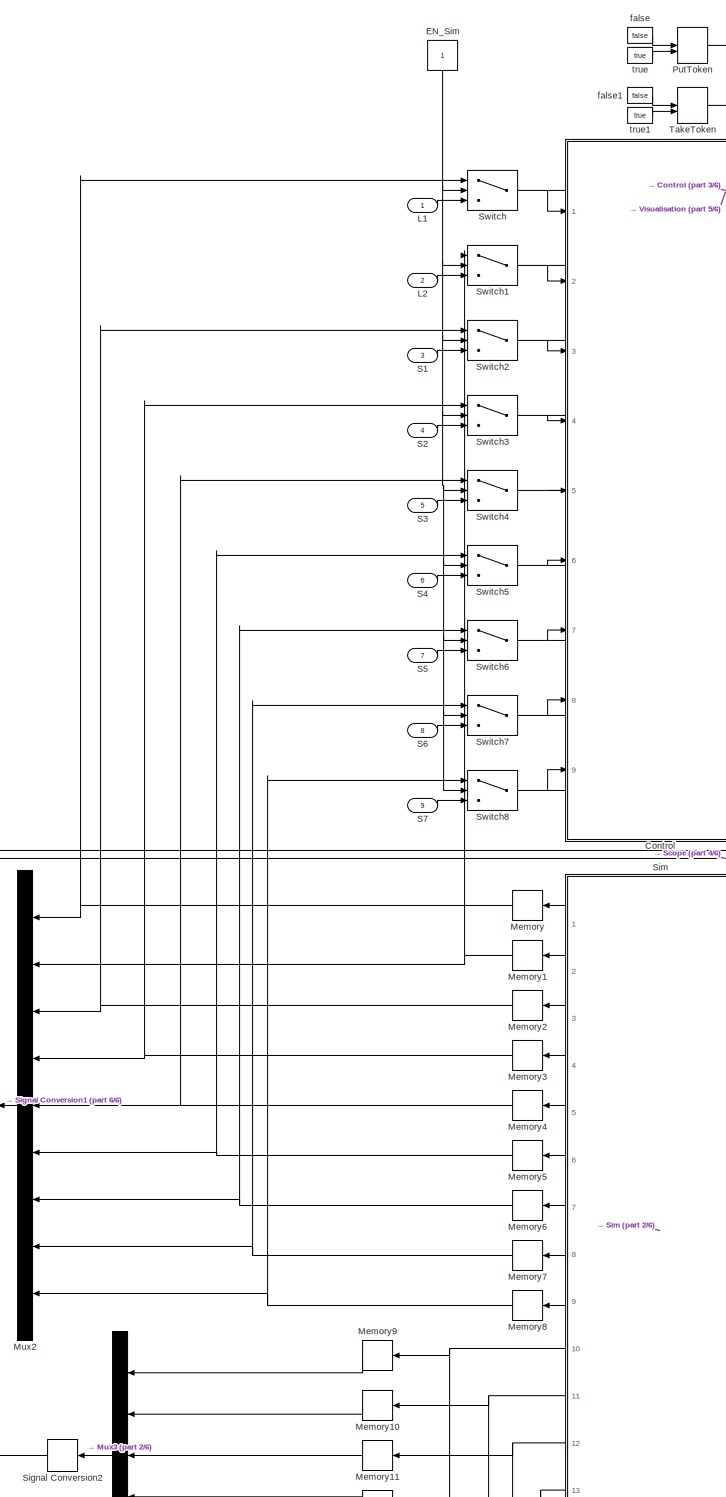
[diagram: root canvas - part 1/6, left side, full height]
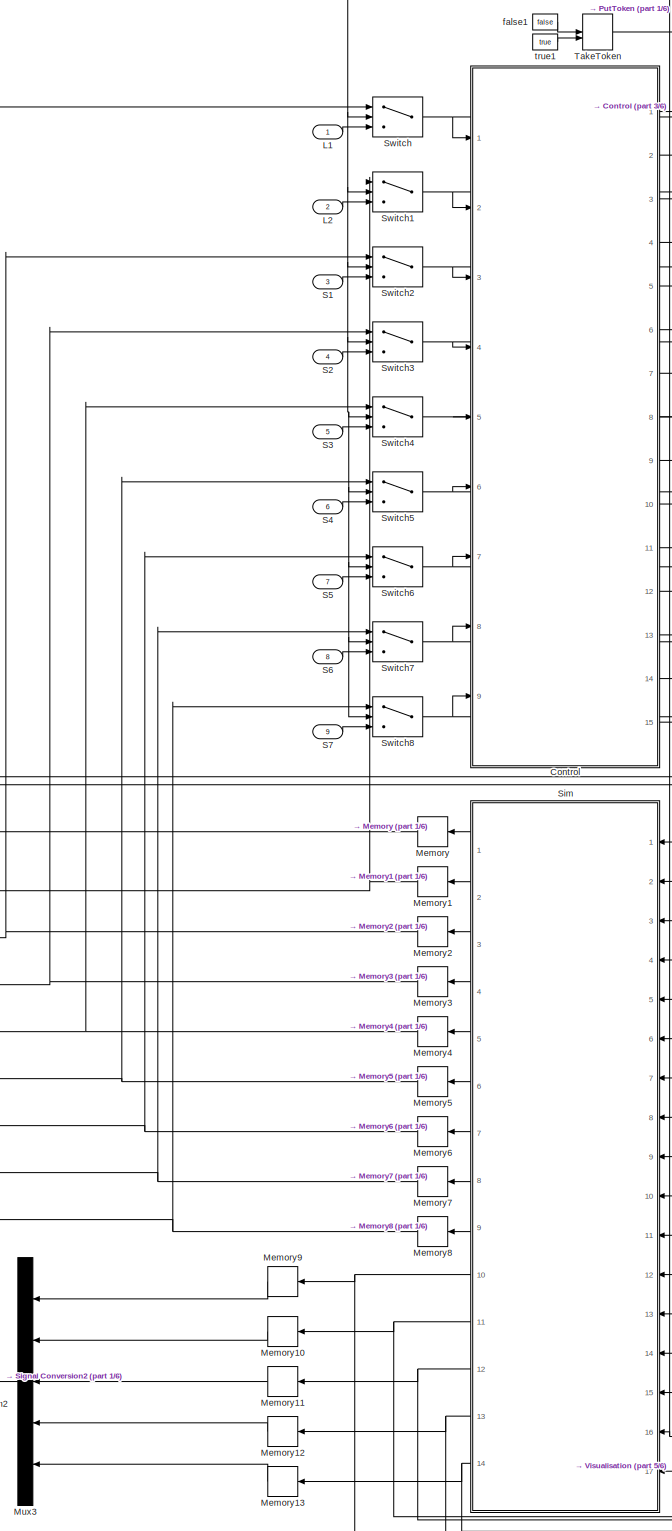
[diagram: root canvas - part 2/6, left side, full height]
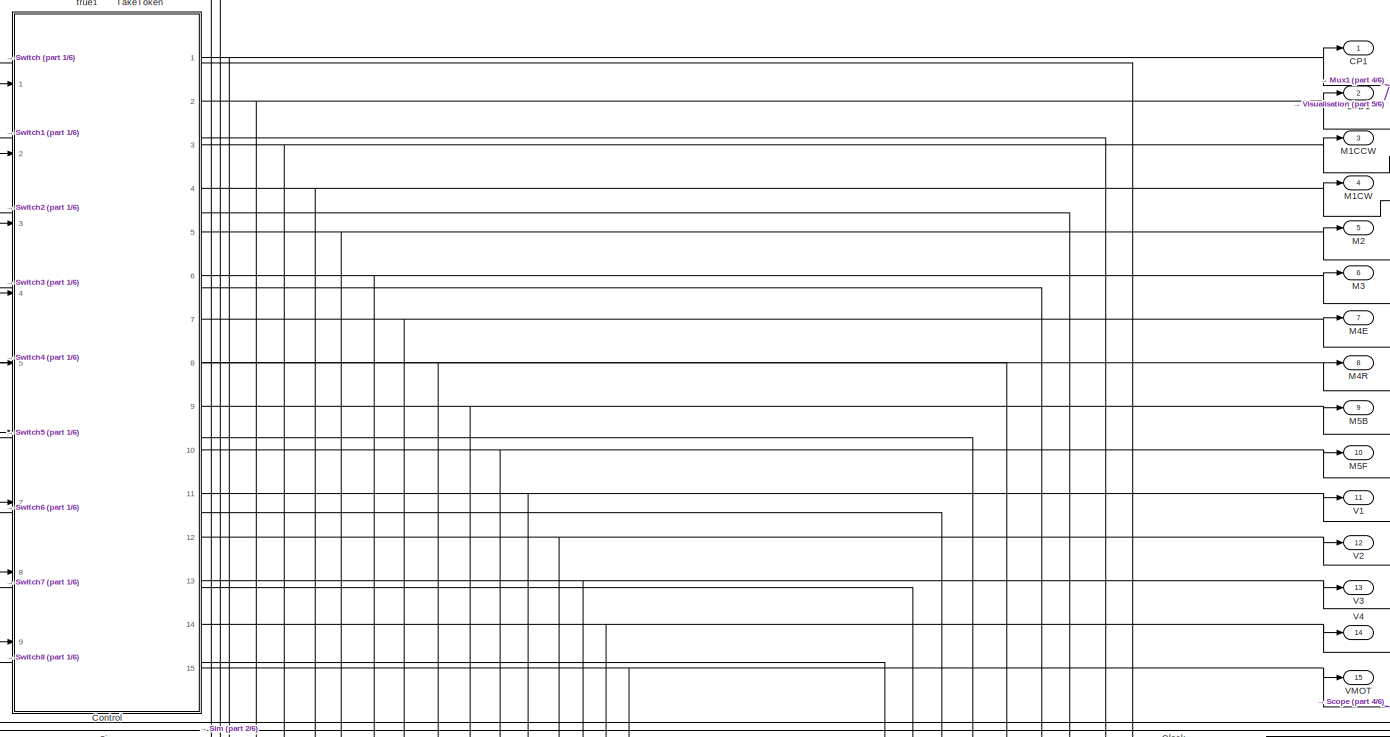
[diagram: root canvas - part 3/6, top center region]
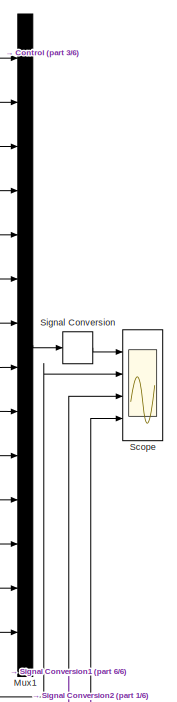
[diagram: root canvas - part 4/6, top right region]
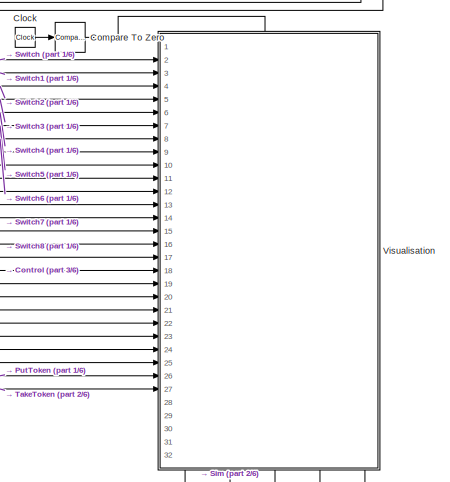
[diagram: root canvas - part 5/6, bottom right region]
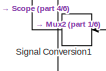
[diagram: root canvas - part 6/6, bottom left region]
MODEL slx_51578b3339f7
KIND model
CONFIG AbsTol = auto
CONFIG EnableMultiTasking = off
CONFIG FixedStep = 0.1
CONFIG MaxStep = auto
CONFIG MinStep = auto
CONFIG PreLoadFcn = addpath(genpath('vis'));
CONFIG RelTol = 1e-3
CONFIG SampleTimeConstraint = Unconstrained
CONFIG SolverName = FixedStepAuto
CONFIG StartTime = 0
CONFIG StopFcn = close all
CONFIG StopTime = inf
BLOCK [Outport] CP1
  OutDataTypeStr = boolean
  VectorParamsAs1DForOutWhenUnconnected = off
BLOCK [Clock] Clock
BLOCK [Reference] Compare To Zero  REF=simulink/Logic and Bit
Operations/Compare
To Zero
  Ports = [1, 1]
  SourceBlock = simulink/Logic and Bit\nOperations/Compare\nTo Zero
  SourceProductBaseCode = SL
  SourceType = Compare To Zero
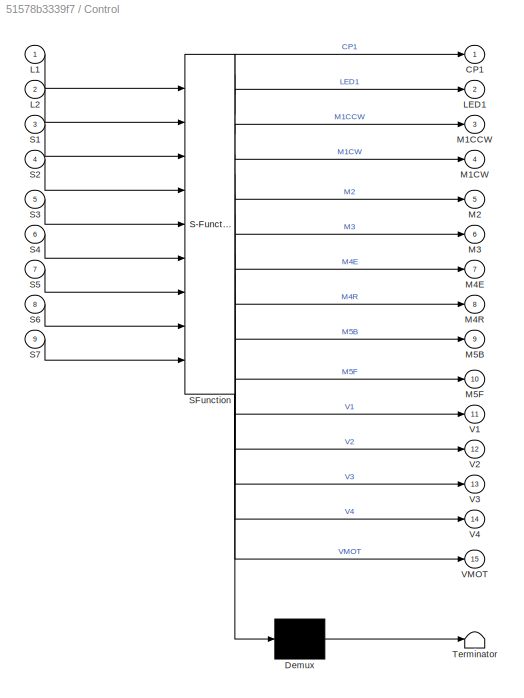
BLOCK [SubSystem] Control
  ErrorFcn = Stateflow.Translate.translate
  PermitHierarchicalResolution = ExplicitOnly
  Ports = [9, 15]
  RequestExecContextInheritance = off
  SFBlockType = Chart
  TreatAsAtomicUnit = on
BLOCK [Demux] Control/ Demux 
  Outputs = 1
  Ports = [1, 1]
BLOCK [S-Function] Control/ SFunction 
  EnableBusSupport = on
  FunctionName = sf_sfun
  PortCounts = [9 16]
  Ports = [9, 16]
  SFcnIsStateOwnerBlock = off
  SFunctionDeploymentMode = off
  Tag = Stateflow S-Function 3
BLOCK [Terminator] Control/ Terminator 
BLOCK [Outport] Control/CP1
BLOCK [Inport] Control/L1
BLOCK [Inport] Control/L2
  Port = 2
BLOCK [Outport] Control/LED1
  Port = 2
BLOCK [Outport] Control/M1CCW
  Port = 3
BLOCK [Outport] Control/M1CW
  Port = 4
BLOCK [Outport] Control/M2
  Port = 5
BLOCK [Outport] Control/M3
  Port = 6
BLOCK [Outport] Control/M4E
  Port = 7
BLOCK [Outport] Control/M4R
  Port = 8
BLOCK [Outport] Control/M5B
  Port = 9
BLOCK [Outport] Control/M5F
  Port = 10
BLOCK [Inport] Control/S1
  Port = 3
BLOCK [Inport] Control/S2
  Port = 4
BLOCK [Inport] Control/S3
  Port = 5
BLOCK [Inport] Control/S4
  Port = 6
BLOCK [Inport] Control/S5
  Port = 7
BLOCK [Inport] Control/S6
  Port = 8
BLOCK [Inport] Control/S7
  Port = 9
BLOCK [Outport] Control/V1
  Port = 11
BLOCK [Outport] Control/V2
  Port = 12
BLOCK [Outport] Control/V3
  Port = 13
BLOCK [Outport] Control/V4
  Port = 14
BLOCK [Outport] Control/VMOT
  Port = 15
BLOCK [Constant] EN_Sim
  NameLocation = top
BLOCK [Inport] L1
  OutDataTypeStr = boolean
BLOCK [Inport] L2
  OutDataTypeStr = boolean
  Port = 2
BLOCK [Outport] LED1
  OutDataTypeStr = boolean
  Port = 2
  VectorParamsAs1DForOutWhenUnconnected = off
BLOCK [Outport] M1CCW
  OutDataTypeStr = boolean
  Port = 3
  VectorParamsAs1DForOutWhenUnconnected = off
BLOCK [Outport] M1CW
  OutDataTypeStr = boolean
  Port = 4
  VectorParamsAs1DForOutWhenUnconnected = off
BLOCK [Outport] M2
  OutDataTypeStr = boolean
  Port = 5
  VectorParamsAs1DForOutWhenUnconnected = off
BLOCK [Outport] M3
  OutDataTypeStr = boolean
  Port = 6
  VectorParamsAs1DForOutWhenUnconnected = off
BLOCK [Outport] M4E
  OutDataTypeStr = boolean
  Port = 7
  VectorParamsAs1DForOutWhenUnconnected = off
BLOCK [Outport] M4R
  OutDataTypeStr = boolean
  Port = 8
  VectorParamsAs1DForOutWhenUnconnected = off
BLOCK [Outport] M5B
  OutDataTypeStr = boolean
  Port = 9
  VectorParamsAs1DForOutWhenUnconnected = off
BLOCK [Outport] M5F
  OutDataTypeStr = boolean
  Port = 10
  VectorParamsAs1DForOutWhenUnconnected = off
BLOCK [Memory] Memory
  InitialCondition = 1
BLOCK [Memory] Memory1
  InitialCondition = 1
BLOCK [Memory] Memory10
BLOCK [Memory] Memory11
BLOCK [Memory] Memory12
BLOCK [Memory] Memory13
BLOCK [Memory] Memory2
BLOCK [Memory] Memory3
BLOCK [Memory] Memory4
BLOCK [Memory] Memory5
BLOCK [Memory] Memory6
BLOCK [Memory] Memory7
BLOCK [Memory] Memory8
BLOCK [Memory] Memory9
BLOCK [Mux] Mux1
  DisplayOption = bar
  Inputs = 14
  Ports = [14, 1]
BLOCK [Mux] Mux2
  DisplayOption = bar
  Inputs = 9
  NameLocation = top
  Ports = [9, 1]
BLOCK [Mux] Mux3
  DisplayOption = bar
  Inputs = 5
  NameLocation = top
  Ports = [5, 1]
BLOCK [ManualSwitch] PutToken
BLOCK [Inport] S1
  OutDataTypeStr = boolean
  Port = 3
BLOCK [Inport] S2
  OutDataTypeStr = boolean
  Port = 4
BLOCK [Inport] S3
  OutDataTypeStr = boolean
  Port = 5
BLOCK [Inport] S4
  OutDataTypeStr = boolean
  Port = 6
BLOCK [Inport] S5
  OutDataTypeStr = boolean
  Port = 7
BLOCK [Inport] S6
  OutDataTypeStr = boolean
  Port = 8
BLOCK [Inport] S7
  OutDataTypeStr = boolean
  Port = 9
BLOCK [Scope] Scope
  Floating = off
  NumInputPorts = 4
  Ports = [4]
  ScopeSpecificationString = Simulink.scopes.TimeScopeBlockCfg('CurrentConfiguration', extmgr.ConfigurationSet(extmgr.Configuration('Core','General UI',true),extmgr.Configuration('Core','Source UI',true),extmgr.Configuration('Sources','WiredSimulink',true),extmgr.Configuration('Visuals','Time Domain',true,'SerializedDisplays',{struct('MinYLimReal','0.15456','MaxYLimReal','0.31756','YLabelReal','','MinYLimMag','0.15456','MaxYL...<+2839ch>
BLOCK [SignalConversion] Signal Conversion
  OverrideOpt = off
BLOCK [SignalConversion] Signal Conversion1
  OverrideOpt = off
BLOCK [SignalConversion] Signal Conversion2
  OverrideOpt = off
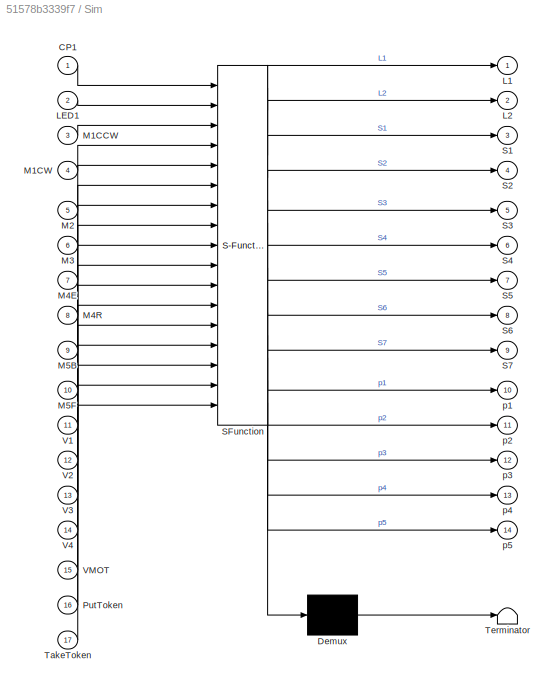
BLOCK [SubSystem] Sim
  ErrorFcn = Stateflow.Translate.translate
  PermitHierarchicalResolution = ExplicitOnly
  Ports = [17, 14]
  RequestExecContextInheritance = off
  SFBlockType = Chart
  TreatAsAtomicUnit = on
BLOCK [Demux] Sim/ Demux 
  Outputs = 1
  Ports = [1, 1]
BLOCK [S-Function] Sim/ SFunction 
  EnableBusSupport = on
  FunctionName = sf_sfun
  PortCounts = [17 15]
  Ports = [17, 15]
  SFcnIsStateOwnerBlock = off
  SFunctionDeploymentMode = off
  Tag = Stateflow S-Function 1
BLOCK [Terminator] Sim/ Terminator 
BLOCK [Inport] Sim/CP1
BLOCK [Outport] Sim/L1
BLOCK [Outport] Sim/L2
  Port = 2
BLOCK [Inport] Sim/LED1
  Port = 2
BLOCK [Inport] Sim/M1CCW
  Port = 3
BLOCK [Inport] Sim/M1CW
  Port = 4
BLOCK [Inport] Sim/M2
  Port = 5
BLOCK [Inport] Sim/M3
  Port = 6
BLOCK [Inport] Sim/M4E
  Port = 7
BLOCK [Inport] Sim/M4R
  Port = 8
BLOCK [Inport] Sim/M5B
  Port = 9
BLOCK [Inport] Sim/M5F
  Port = 10
BLOCK [Inport] Sim/PutToken
  Port = 16
BLOCK [Outport] Sim/S1
  Port = 3
BLOCK [Outport] Sim/S2
  Port = 4
BLOCK [Outport] Sim/S3
  Port = 5
BLOCK [Outport] Sim/S4
  Port = 6
BLOCK [Outport] Sim/S5
  Port = 7
BLOCK [Outport] Sim/S6
  Port = 8
BLOCK [Outport] Sim/S7
  Port = 9
BLOCK [Inport] Sim/TakeToken
  Port = 17
BLOCK [Inport] Sim/V1
  Port = 11
BLOCK [Inport] Sim/V2
  Port = 12
BLOCK [Inport] Sim/V3
  Port = 13
BLOCK [Inport] Sim/V4
  Port = 14
BLOCK [Inport] Sim/VMOT
  Port = 15
BLOCK [Outport] Sim/p1
  Port = 10
BLOCK [Outport] Sim/p2
  Port = 11
BLOCK [Outport] Sim/p3
  Port = 12
BLOCK [Outport] Sim/p4
  Port = 13
BLOCK [Outport] Sim/p5
  Port = 14
BLOCK [Switch] Switch
  Criteria = u2 ~= 0
  InputSameDT = off
  SaturateOnIntegerOverflow = off
  Threshold = 1
BLOCK [Switch] Switch1
  Criteria = u2 ~= 0
  InputSameDT = off
  SaturateOnIntegerOverflow = off
  Threshold = 1
BLOCK [Switch] Switch2
  Criteria = u2 ~= 0
  InputSameDT = off
  SaturateOnIntegerOverflow = off
  Threshold = 1
BLOCK [Switch] Switch3
  Criteria = u2 ~= 0
  InputSameDT = off
  SaturateOnIntegerOverflow = off
  Threshold = 1
BLOCK [Switch] Switch4
  Criteria = u2 ~= 0
  InputSameDT = off
  SaturateOnIntegerOverflow = off
  Threshold = 1
BLOCK [Switch] Switch5
  Criteria = u2 ~= 0
  InputSameDT = off
  SaturateOnIntegerOverflow = off
  Threshold = 1
BLOCK [Switch] Switch6
  Criteria = u2 ~= 0
  InputSameDT = off
  SaturateOnIntegerOverflow = off
  Threshold = 1
BLOCK [Switch] Switch7
  Criteria = u2 ~= 0
  InputSameDT = off
  SaturateOnIntegerOverflow = off
  Threshold = 1
BLOCK [Switch] Switch8
  Criteria = u2 ~= 0
  InputSameDT = off
  SaturateOnIntegerOverflow = off
  Threshold = 1
BLOCK [ManualSwitch] TakeToken
BLOCK [Outport] V1
  OutDataTypeStr = boolean
  Port = 11
  VectorParamsAs1DForOutWhenUnconnected = off
BLOCK [Outport] V2
  OutDataTypeStr = boolean
  Port = 12
  VectorParamsAs1DForOutWhenUnconnected = off
BLOCK [Outport] V3
  OutDataTypeStr = boolean
  Port = 13
  VectorParamsAs1DForOutWhenUnconnected = off
BLOCK [Outport] V4
  OutDataTypeStr = boolean
  Port = 14
  VectorParamsAs1DForOutWhenUnconnected = off
BLOCK [Outport] VMOT
  OutDataTypeStr = uint8
  Port = 15
  VectorParamsAs1DForOutWhenUnconnected = off
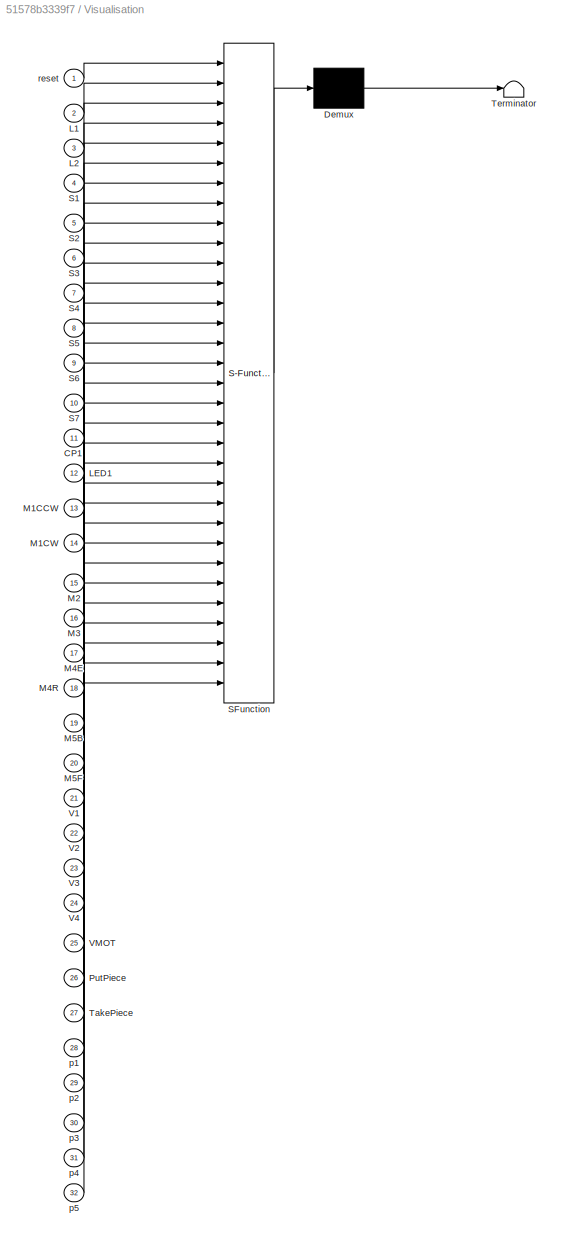
BLOCK [SubSystem] Visualisation 
  ErrorFcn = Stateflow.Translate.translate
  PermitHierarchicalResolution = ExplicitOnly
  PortSchema = {"entries":[{"content":{"sides":[{"content":{"connectorIds":["In11","In12","In13","In14","In15","In16","In17","In18","In19","In20","In21","In22","In23","In24","In25","In26","In27","In2","In3","In4","In5","In6","In7","In8","In9","In10"]},"type":"ConnectorPlacement.EquallySpacedRectSide","uuid":"2c00268f-01f2-48a9-bb45-08f3cdafe229"},{"content":{"connectorIds":[],"side":"RIGHT"},"type":"ConnectorPla...<+729ch>
  Ports = [32]
  RequestExecContextInheritance = off
  SFBlockType = Chart
  TreatAsAtomicUnit = on
BLOCK [Demux] Visualisation / Demux 
  Outputs = 1
  Ports = [1, 1]
BLOCK [S-Function] Visualisation / SFunction 
  EnableBusSupport = on
  FunctionName = sf_sfun
  PortCounts = [32 1]
  Ports = [32, 1]
  SFcnIsStateOwnerBlock = off
  SFunctionDeploymentMode = off
  Tag = Stateflow S-Function 2
BLOCK [Terminator] Visualisation / Terminator 
BLOCK [Inport] Visualisation /CP1
  Port = 11
BLOCK [Inport] Visualisation /L1
  Port = 2
BLOCK [Inport] Visualisation /L2
  Port = 3
BLOCK [Inport] Visualisation /LED1
  Port = 12
BLOCK [Inport] Visualisation /M1CCW
  Port = 13
BLOCK [Inport] Visualisation /M1CW
  Port = 14
BLOCK [Inport] Visualisation /M2
  Port = 15
BLOCK [Inport] Visualisation /M3
  Port = 16
BLOCK [Inport] Visualisation /M4E
  Port = 17
BLOCK [Inport] Visualisation /M4R
  Port = 18
BLOCK [Inport] Visualisation /M5B
  Port = 19
BLOCK [Inport] Visualisation /M5F
  Port = 20
BLOCK [Inport] Visualisation /PutPiece
  Port = 26
BLOCK [Inport] Visualisation /S1
  Port = 4
BLOCK [Inport] Visualisation /S2
  Port = 5
BLOCK [Inport] Visualisation /S3
  Port = 6
BLOCK [Inport] Visualisation /S4
  Port = 7
BLOCK [Inport] Visualisation /S5
  Port = 8
BLOCK [Inport] Visualisation /S6
  Port = 9
BLOCK [Inport] Visualisation /S7
  Port = 10
BLOCK [Inport] Visualisation /TakePiece
  Port = 27
BLOCK [Inport] Visualisation /V1
  Port = 21
BLOCK [Inport] Visualisation /V2
  Port = 22
BLOCK [Inport] Visualisation /V3
  Port = 23
BLOCK [Inport] Visualisation /V4
  Port = 24
BLOCK [Inport] Visualisation /VMOT
  Port = 25
BLOCK [Inport] Visualisation /p1
  Port = 28
BLOCK [Inport] Visualisation /p2
  Port = 29
BLOCK [Inport] Visualisation /p3
  Port = 30
BLOCK [Inport] Visualisation /p4
  Port = 31
BLOCK [Inport] Visualisation /p5
  Port = 32
BLOCK [Inport] Visualisation /reset
BLOCK [Constant] false
  NameLocation = left
  Value = false
BLOCK [Constant] false1
  NameLocation = left
  Value = false
BLOCK [Constant] true
  NameLocation = left
  Value = true
BLOCK [Constant] true1
  NameLocation = left
  Value = true
LINE Clock:1 -> Compare To Zero:1
LINE Compare To Zero:1 -> Visualisation :1
NET Control:1 -> CP1:1, Mux1:1, Sim:1, Visualisation :11
NET Control:10 -> M5F:1, Mux1:10, Sim:10, Visualisation :20
NET Control:11 -> Mux1:11, Sim:11, V1:1, Visualisation :21
NET Control:12 -> Mux1:12, Sim:12, V2:1, Visualisation :22
NET Control:13 -> Mux1:13, Sim:13, V3:1, Visualisation :23
NET Control:14 -> Mux1:14, Sim:14, V4:1, Visualisation :24
NET Control:15 -> Scope:2, Sim:15, VMOT:1, Visualisation :25
NET Control:2 -> LED1:1, Mux1:2, Sim:2, Visualisation :12
NET Control:3 -> M1CCW:1, Mux1:3, Sim:3, Visualisation :13
NET Control:4 -> M1CW:1, Mux1:4, Sim:4, Visualisation :14
NET Control:5 -> M2:1, Mux1:5, Sim:5, Visualisation :15
NET Control:6 -> M3:1, Mux1:6, Sim:6, Visualisation :16
NET Control:7 -> M4E:1, Mux1:7, Sim:7, Visualisation :17
NET Control:8 -> M4R:1, Mux1:8, Sim:8, Visualisation :18
NET Control:9 -> M5B:1, Mux1:9, Sim:9, Visualisation :19
NET EN_Sim:1 -> Switch1:2, Switch2:2, Switch3:2, Switch4:2, Switch5:2, Switch6:2, Switch7:2, Switch8:2, Switch:2
LINE L1:1 -> Switch:3
LINE L2:1 -> Switch1:3
LINE Memory10:1 -> Mux3:2
LINE Memory11:1 -> Mux3:3
LINE Memory12:1 -> Mux3:4
LINE Memory13:1 -> Mux3:5
NET Memory1:1 -> Mux2:2, Switch1:1
NET Memory2:1 -> Mux2:3, Switch2:1
NET Memory3:1 -> Mux2:4, Switch3:1
NET Memory4:1 -> Mux2:5, Switch4:1
NET Memory5:1 -> Mux2:6, Switch5:1
NET Memory6:1 -> Mux2:7, Switch6:1
NET Memory7:1 -> Mux2:8, Switch7:1
NET Memory8:1 -> Mux2:9, Switch8:1
LINE Memory9:1 -> Mux3:1
NET Memory:1 -> Mux2:1, Switch:1
LINE Mux1:1 -> Signal Conversion:1
LINE Mux2:1 -> Signal Conversion1:1
LINE Mux3:1 -> Signal Conversion2:1
NET PutToken:1 -> Sim:16, Visualisation :26
LINE S1:1 -> Switch2:3
LINE S2:1 -> Switch3:3
LINE S3:1 -> Switch4:3
LINE S4:1 -> Switch5:3
LINE S5:1 -> Switch6:3
LINE S6:1 -> Switch7:3
LINE S7:1 -> Switch8:3
LINE Signal Conversion1:1 -> Scope:3
LINE Signal Conversion2:1 -> Scope:4
LINE Signal Conversion:1 -> Scope:1
LINE Sim:1 -> Memory:1
NET Sim:10 -> Memory9:1, Visualisation :28
NET Sim:11 -> Memory10:1, Visualisation :29
NET Sim:12 -> Memory11:1, Visualisation :30
NET Sim:13 -> Memory12:1, Visualisation :31
NET Sim:14 -> Memory13:1, Visualisation :32
LINE Sim:2 -> Memory1:1
LINE Sim:3 -> Memory2:1
LINE Sim:4 -> Memory3:1
LINE Sim:5 -> Memory4:1
LINE Sim:6 -> Memory5:1
LINE Sim:7 -> Memory6:1
LINE Sim:8 -> Memory7:1
LINE Sim:9 -> Memory8:1
NET Switch1:1 -> Control:2, Visualisation :3
NET Switch2:1 -> Control:3, Visualisation :4
NET Switch3:1 -> Control:4, Visualisation :5
NET Switch4:1 -> Control:5, Visualisation :6
NET Switch5:1 -> Control:6, Visualisation :7
NET Switch6:1 -> Control:7, Visualisation :8
NET Switch7:1 -> Control:8, Visualisation :9
NET Switch8:1 -> Control:9, Visualisation :10
NET Switch:1 -> Control:1, Visualisation :2
NET TakeToken:1 -> Sim:17, Visualisation :27
LINE false1:1 -> TakeToken:1
LINE false:1 -> PutToken:1
LINE true1:1 -> TakeToken:2
LINE true:1 -> PutToken:2
note: NET lines group one-source signal fan-out (src -> all destinations, sorted); 1:1 wires keep LINE
CHART Sim states=53 transitions=62
  STATE_LABEL 'Gripper'
  STATE_LABEL 'takeToken'
  STATE_LABEL 'wait'
  STATE_LABEL 'take\nentry:tokenInOven=false'
  STATE_LABEL 'waitArm'
  STATE_LABEL 'after(0.2,sec)'
  STATE_LABEL 'after(1.8,sec)'
  STATE_LABEL '[S7&V1&V2]'
  STATE_LABEL 's4Control1'
  STATE_LABEL 's4Control\nentry: S4= (p2<=0.0)'
  STATE_LABEL 'after(0.2,sec)'
  STATE_LABEL 'GripperMoveRight'
  STATE_LABEL 'M5B_Wait\n'
  STATE_LABEL 'M5B_Move\nentry: p2=min(p2-0.01,1)'
  STATE_LABEL '[M5B]'
  STATE_LABEL '[~M5B]'
  STATE_LABEL 'after(0.2,sec)'
  STATE_LABEL 'after(0.2,sec)'
  STATE_LABEL 'S7Control\n'
  STATE_LABEL 's7Control7\nentry: S7= (p2>=1.0)'
  STATE_LABEL 'after(0.2,sec)'
  STATE_LABEL 'GripperMoveLeft'
  STATE_LABEL 'M5F_Wait\n'
  STATE_LABEL 'M5B_Move\nentry: p2=max(p2+0.01,0)\n'
  STATE_LABEL '[M5F]'
  STATE_LABEL '[~M5F]'
  STATE_LABEL 'after(0.2,sec)'
  STATE_LABEL 'after(0.2,sec)'
  STATE_LABEL 'takeToken'
  STATE_LABEL 'wait'
  STATE_LABEL 'take\nentry:tokenInOven=false'
  STATE_LABEL 'waitArm'
  STATE_LABEL 'after(0.2,sec)'
  STATE_LABEL 'after(1.8,sec)'
  STATE_LABEL '[S7&V1&V2]'
  STATE_LABEL 'wait'
  STATE_LABEL 'take\nentry:tokenInOven=false'
  STATE_LABEL 'waitArm'
  STATE_LABEL 's4Control1'
  STATE_LABEL 's4Control\nentry: S4= (p2<=0.0)'
CHART Visualisation  states=3 transitions=5
  STATE_LABEL '<!DOCTYPE HTML PUBLIC "-//W3C//DTD HTML 4.0//EN" "http://www.w3.org/TR/REC-html40/strict.dtd">\n<html><head><meta name="qrichtext" content="1" /><style type="text/css">\np, li { white-space: pre-wrap; }\n</style></head><body align="left" style=" font-family:\'Helvetica\'; font-size:12px; font-weight:400; font-style:normal;">\n<p align="left" style=" margin-top:0px; margin-bottom:0px; margin-left:0px; ma...<+156ch>'
  STATE_LABEL 'Init\nen: ml.vis=ml.createVis();'
  STATE_LABEL 'Update\nen: ml.vis=ml.updateVis(ml.vis,reset,L1,L2,S1,S2,S3,S4,S5,S6,S7,CP1,LED1,M1CCW,M1CW,M2,M3,M4E,M4R,M5B,M5F,V1,V2,V3,V4,VMOT,PutPiece,TakePiece,p1,p2,p3,p4,p5);'
CHART Control states=35 transitions=33
  STATE_LABEL '<!DOCTYPE HTML PUBLIC "-//W3C//DTD HTML 4.0//EN" "http://www.w3.org/TR/REC-html40/strict.dtd">\n<html><head><meta name="qrichtext" content="1" /><style type="text/css">\np, li { white-space: pre-wrap; }\n</style></head><body align="left" style=" font-family:\'MS Shell Dlg 2\'; font-size:8.25pt; font-weight:400; font-style:normal;">\n<p align="left" style=" margin-top:0px; margin-bottom:0px; margin-left:...<+169ch>'
  STATE_LABEL 'General\nen: CP1=false;\nen: LED1=false;\nen:  M1CCW=false;\nen:  M1CW=false;\nen:  M2=false;\nen:  M3=false;\nen:  M4E=false;\nen:  M4R=false;\nen:  M5B=false;\nen: M5F=false;\nen: V1=false;\nen: V2=false;\nen: V3=false;\nen: V4=false;\nen: VMOT=uint8(255);'
  STATE_LABEL 'Oven'
  STATE_LABEL 'Init\nentry:V3=true\nen: M4E=true\nex: M4E=false\n'
  STATE_LABEL 'readyPos\nentry: OvenHasToken=false\nentry:tokenOvenDone=false\n'
  STATE_LABEL 'waitForTake\nentry: OvenHasToken=true\n'
  STATE_LABEL 'tokenInput\nentry: M4R=true\nexit: V3=false\nexit: M4R=false'
  STATE_LABEL 'heating\nentry: LED1=true\nentry: tokenOvenDone=true\nexit: LED1=false'
  STATE_LABEL 'tokenOutput\nentry: V3=true\nentry: M4E=true\nexit: M4E=false'
  STATE_LABEL '[S6]'
  STATE_LABEL '[~L2]'
  STATE_LABEL '[L2&&~tokenOvenDone]'
  STATE_LABEL '[S6]'
  STATE_LABEL '[S5]'
  STATE_LABEL 'after(5,sec)'
  STATE_LABEL 'Init\nentry:V3=true\nen: M4E=true\nex: M4E=false\n'
  STATE_LABEL 'readyPos\nentry: OvenHasToken=false\nentry:tokenOvenDone=false\n'
  STATE_LABEL 'waitForTake\nentry: OvenHasToken=true\n'
  STATE_LABEL 'tokenInput\nentry: M4R=true\nexit: V3=false\nexit: M4R=false'
  STATE_LABEL 'heating\nentry: LED1=true\nentry: tokenOvenDone=true\nexit: LED1=false'
  STATE_LABEL 'tokenOutput\nentry: V3=true\nentry: M4E=true\nexit: M4E=false'
  STATE_LABEL 'Gripper'
  STATE_LABEL 'loweringArm1\nentry:V2=true'
  STATE_LABEL 'ungrip\nentry: V1=false\nentry:CP1=false'
  STATE_LABEL 'Init\nentry:V2=true\nentry:M5B=true\nexit:M5B=false\n'
  STATE_LABEL 'turntableWait'
  STATE_LABEL 'armUp1\nentry:V2=false\nentry: TurnTablePut=true'
  STATE_LABEL 'ready'
  STATE_LABEL 'gotoTurntable\nentry:M5B=true\nexit: M5B=false'
  STATE_LABEL 'gotoOven\nentry: M5F=true\nexit:M5F=false'
  STATE_LABEL 'loweringArm\nentry:V2=true\nentry:CP1=true'
  STATE_LABEL 'VacuumGrip\nentry: V1=true'
  STATE_LABEL 'armUp\nentry: V2=false'
  STATE_LABEL 'after(2,sec)'
  STATE_LABEL '[S1]'
  STATE_LABEL 'after(2,sec)'
  STATE_LABEL '[S4]'
  STATE_LABEL '[S4]'
  STATE_LABEL 'after(2,sec)'
  STATE_LABEL '[OvenHasToken]'
CHART  states=0 transitions=0
CHART  states=0 transitions=0
CHART  states=0 transitions=0
